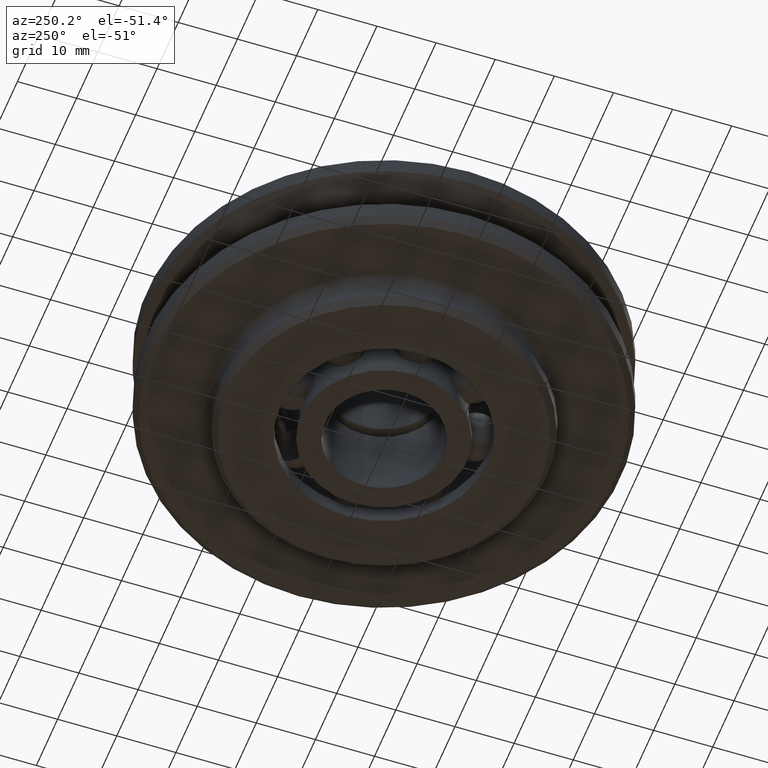
[diagram: clean part render]
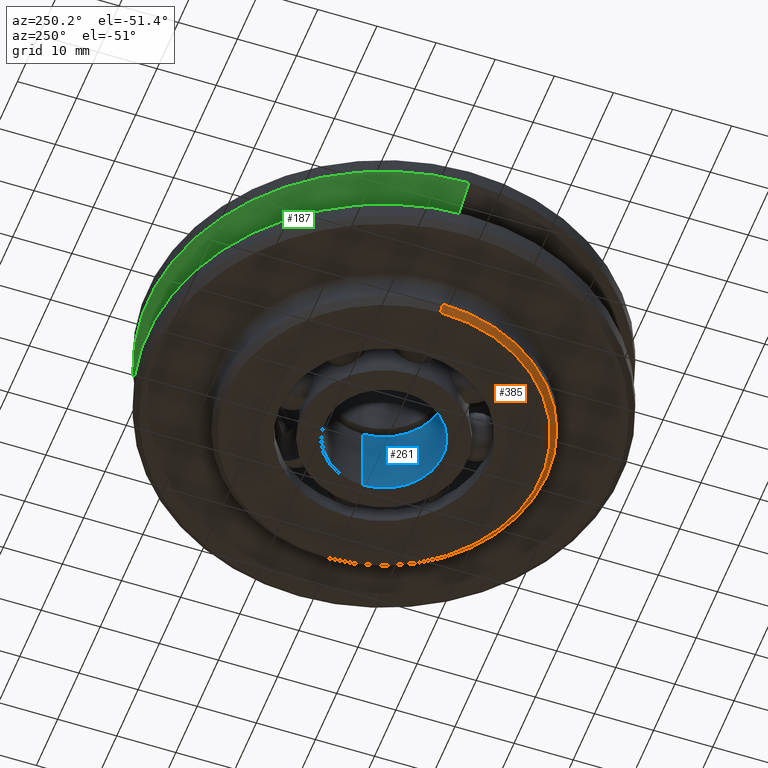
[diagram: same view with three faces highlighted in distinct colors, each labeled with its STEP entity id]
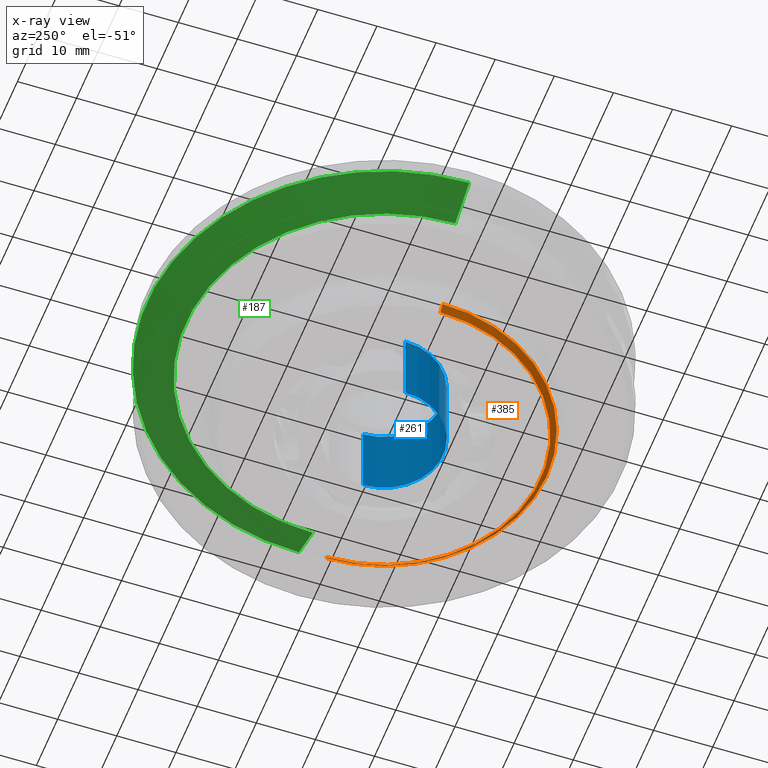
[diagram: x-ray of the same camera — body ghosted, the three highlighted faces saturated]
A machine part, auxiliary view with three faces highlighted in distinct colors.
The next image is the same camera in x-ray (body ghosted, the three faces saturated) — at least one of them is partly hidden behind the body in this view.
Their STEP definitions:

[orange] entity #385 — the highlighted conical surface has half-angle 45 deg.
#385=ADVANCED_FACE('',(#795),#796,.T.);
#795=FACE_OUTER_BOUND('',#1205,.T.);
#796=CONICAL_SURFACE('',#1206,27.0,0.785398163397448);
#1205=EDGE_LOOP('',(#2491,#2492,#2493,#2494));
#1206=AXIS2_PLACEMENT_3D('',#2495,#2496,#2497);
#2491=ORIENTED_EDGE('',*,*,#2683,.T.);
#2492=ORIENTED_EDGE('',*,*,#3088,.F.);
#2493=ORIENTED_EDGE('',*,*,#2685,.T.);
#2494=ORIENTED_EDGE('',*,*,#3086,.T.);
#2495=CARTESIAN_POINT('',(0.0,0.0,-12.5));
#2496=DIRECTION('',(-0.0,-0.0,1.0));
#2497=DIRECTION('',(1.0,0.0,0.0));
#2683=EDGE_CURVE('',#3306,#3299,#3307,.T.);
#2685=EDGE_CURVE('',#3301,#3308,#3310,.T.);
#3086=EDGE_CURVE('',#3308,#3306,#3903,.T.);
#3088=EDGE_CURVE('',#3301,#3299,#3905,.T.);
#3299=VERTEX_POINT('',#4956);
#3301=VERTEX_POINT('',#4959);
#3306=VERTEX_POINT('',#4965);
#3307=LINE('',#4966,#4967);
#3308=VERTEX_POINT('',#4968);
#3310=LINE('',#4970,#4971);
#3903=CIRCLE('',#8078,26.5);
#3905=CIRCLE('',#8080,27.5);
#4956=CARTESIAN_POINT('',(27.5,0.0,-12.0));
#4959=CARTESIAN_POINT('',(-27.5,3.36777869765522E-015,-12.0));
#4965=CARTESIAN_POINT('',(26.5,0.0,-13.0));
#4966=CARTESIAN_POINT('',(27.0,-3.30654635769785E-015,-12.5));
#4967=VECTOR('',#8260,1.0);
#4968=CARTESIAN_POINT('',(-26.5,3.24531401774049E-015,-13.0));
#4970=CARTESIAN_POINT('',(-27.0,3.30654635769785E-015,-12.5));
#4971=VECTOR('',#8264,1.0);
#8078=AXIS2_PLACEMENT_3D('',#8692,#8693,#8694);
#8080=AXIS2_PLACEMENT_3D('',#8695,#8696,#8697);
#8260=DIRECTION('',(0.707106781186548,-8.65956056235493E-017,0.707106781186548));
#8264=DIRECTION('',(0.707106781186548,-8.65956056235493E-017,-0.707106781186548));
#8692=CARTESIAN_POINT('',(0.0,0.0,-13.0));
#8693=DIRECTION('',(0.0,0.0,1.0));
#8694=DIRECTION('',(1.0,0.0,0.0));
#8695=CARTESIAN_POINT('',(0.0,0.0,-12.0));
#8696=DIRECTION('',(0.0,0.0,1.0));
#8697=DIRECTION('',(1.0,0.0,0.0));

[blue] entity #261 — the highlighted cylindrical surface (partial cylindrical patch) has radius 10 mm, axis along (0, 0, -1).
#261=ADVANCED_FACE('',(#592),#593,.F.);
#592=FACE_OUTER_BOUND('',#1002,.T.);
#593=CYLINDRICAL_SURFACE('',#1003,10.0);
#1002=EDGE_LOOP('',(#1827,#1828,#1829,#1830));
#1003=AXIS2_PLACEMENT_3D('',#1831,#1832,#1833);
#1827=ORIENTED_EDGE('',*,*,#2933,.F.);
#1828=ORIENTED_EDGE('',*,*,#2934,.F.);
#1829=ORIENTED_EDGE('',*,*,#2935,.F.);
#1830=ORIENTED_EDGE('',*,*,#2936,.F.);
#1831=CARTESIAN_POINT('',(0.0,0.0,-7.0));
#1832=DIRECTION('',(0.0,0.0,-1.0));
#1833=DIRECTION('',(1.0,0.0,0.0));
#2933=EDGE_CURVE('',#3722,#3723,#3724,.T.);
#2934=EDGE_CURVE('',#3725,#3722,#3726,.T.);
#2935=EDGE_CURVE('',#3727,#3725,#3728,.T.);
#2936=EDGE_CURVE('',#3723,#3727,#3729,.T.);
#3722=VERTEX_POINT('',#7059);
#3723=VERTEX_POINT('',#7060);
#3724=LINE('',#7061,#7062);
#3725=VERTEX_POINT('',#7063);
#3726=CIRCLE('',#7064,10.0);
#3727=VERTEX_POINT('',#7065);
#3728=LINE('',#7066,#7067);
#3729=CIRCLE('',#7068,10.0);
#7059=CARTESIAN_POINT('',(10.0,0.0,-14.0));
#7060=CARTESIAN_POINT('',(10.0,0.0,-1.0));
#7061=CARTESIAN_POINT('',(10.0,1.22464679914735E-015,-7.0));
#7062=VECTOR('',#8572,1.0);
#7063=CARTESIAN_POINT('',(-10.0,-1.22464679914735E-015,-14.0));
#7064=AXIS2_PLACEMENT_3D('',#8573,#8574,#8575);
#7065=CARTESIAN_POINT('',(-10.0,-1.22464679914735E-015,-1.0));
#7066=CARTESIAN_POINT('',(-10.0,-1.22464679914735E-015,-7.0));
#7067=VECTOR('',#8576,1.0);
#7068=AXIS2_PLACEMENT_3D('',#8577,#8578,#8579);
#8572=DIRECTION('',(-0.0,-0.0,1.0));
#8573=CARTESIAN_POINT('',(0.0,0.0,-14.0));
#8574=DIRECTION('',(0.0,-0.0,1.0));
#8575=DIRECTION('',(1.0,0.0,0.0));
#8576=DIRECTION('',(-0.0,-0.0,-1.0));
#8577=CARTESIAN_POINT('',(0.0,0.0,-1.0));
#8578=DIRECTION('',(0.0,0.0,-1.0));
#8579=DIRECTION('',(1.0,0.0,0.0));

[green] entity #187 — the highlighted conical surface has half-angle 67.5 deg.
#187=ADVANCED_FACE('',(#475),#476,.T.);
#475=FACE_OUTER_BOUND('',#885,.T.);
#476=CONICAL_SURFACE('',#886,36.7438535,1.1780971904077);
#885=EDGE_LOOP('',(#1379,#1380,#1381,#1382));
#886=AXIS2_PLACEMENT_3D('',#1383,#1384,#1385);
#1379=ORIENTED_EDGE('',*,*,#2652,.F.);
#1380=ORIENTED_EDGE('',*,*,#2566,.T.);
#1381=ORIENTED_EDGE('',*,*,#2653,.F.);
#1382=ORIENTED_EDGE('',*,*,#2654,.F.);
#1383=CARTESIAN_POINT('',(0.0,0.0,2.82694725));
#1384=DIRECTION('',(-0.0,-0.0,1.0));
#1385=DIRECTION('',(1.0,0.0,0.0));
#2566=EDGE_CURVE('',#3108,#3106,#3109,.T.);
#2652=EDGE_CURVE('',#3108,#3259,#3260,.T.);
#2653=EDGE_CURVE('',#3261,#3106,#3262,.T.);
#2654=EDGE_CURVE('',#3259,#3261,#3263,.T.);
#3106=VERTEX_POINT('',#3923);
#3108=VERTEX_POINT('',#3925);
#3109=CIRCLE('',#3926,33.487707);
#3259=VERTEX_POINT('',#4908);
#3260=LINE('',#4909,#4910);
#3261=VERTEX_POINT('',#4911);
#3262=LINE('',#4912,#4913);
#3263=CIRCLE('',#4914,40.0);
#3923=CARTESIAN_POINT('',(-33.487707,4.10106131883344E-015,1.478207));
#3925=CARTESIAN_POINT('',(33.487707,0.0,1.478207));
#3926=AXIS2_PLACEMENT_3D('',#8100,#8101,#8102);
#4908=CARTESIAN_POINT('',(40.0,0.0,4.1756875));
#4909=CARTESIAN_POINT('',(36.7438535,-4.49982425771142E-015,2.82694725));
#4910=VECTOR('',#8208,1.0);
#4911=CARTESIAN_POINT('',(-40.0,4.89858719658941E-015,4.1756875));
#4912=CARTESIAN_POINT('',(-36.7438535,4.49982425771143E-015,2.82694725));
#4913=VECTOR('',#8209,1.0);
#4914=AXIS2_PLACEMENT_3D('',#8210,#8211,#8212);
#8100=CARTESIAN_POINT('',(0.0,0.0,1.478207));
#8101=DIRECTION('',(0.0,0.0,1.0));
#8102=DIRECTION('',(1.0,0.0,0.0));
#8208=DIRECTION('',(0.923879511582911,-1.13142608665783E-016,0.382683482890654));
#8209=DIRECTION('',(0.923879511582911,-1.13142608665783E-016,-0.382683482890654));
#8210=CARTESIAN_POINT('',(0.0,0.0,4.1756875));
#8211=DIRECTION('',(0.0,0.0,1.0));
#8212=DIRECTION('',(1.0,0.0,0.0));